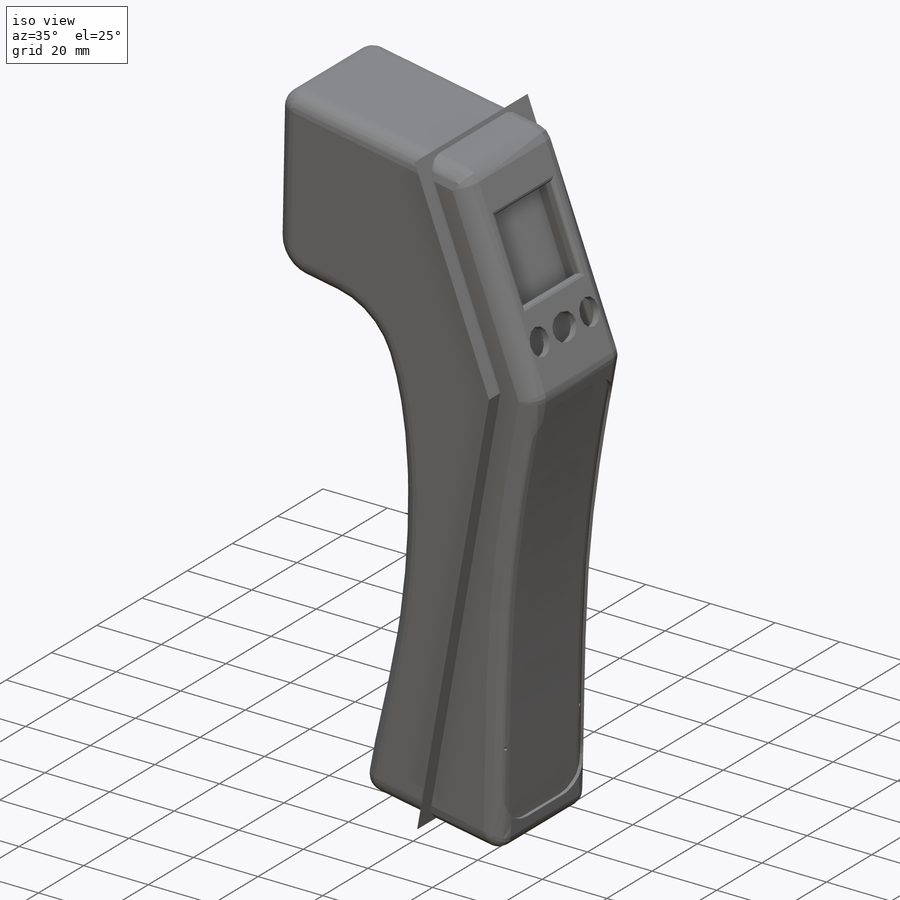
[diagram: iso view]
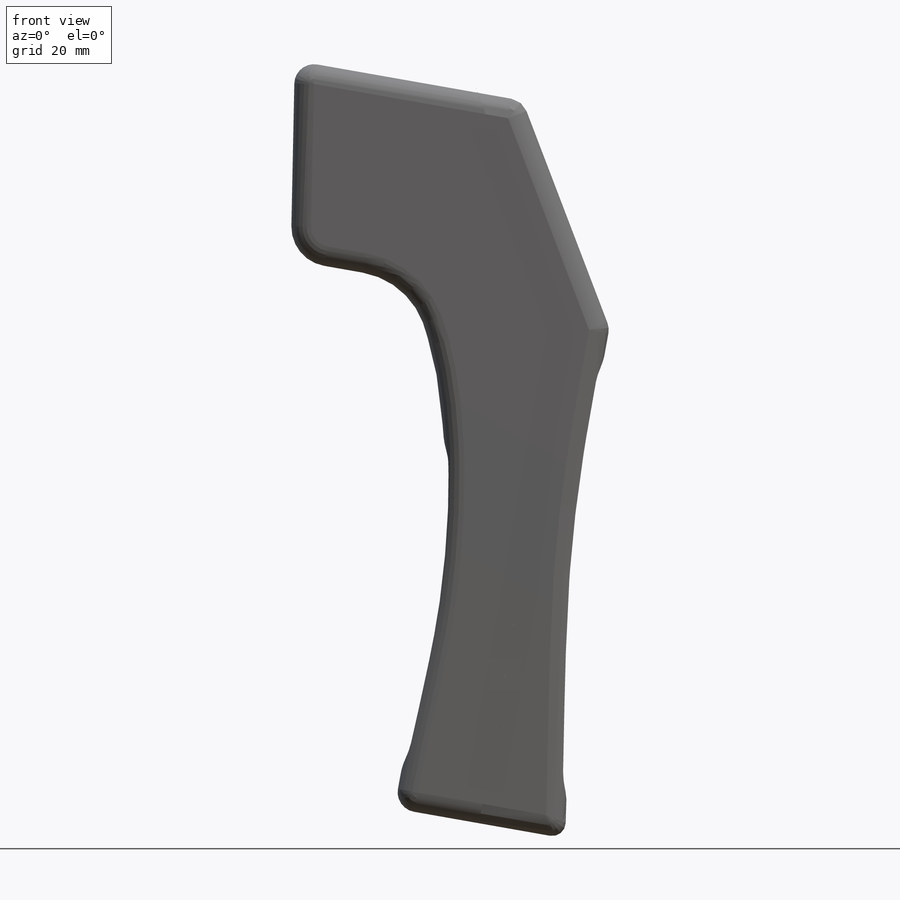
[diagram: front view]
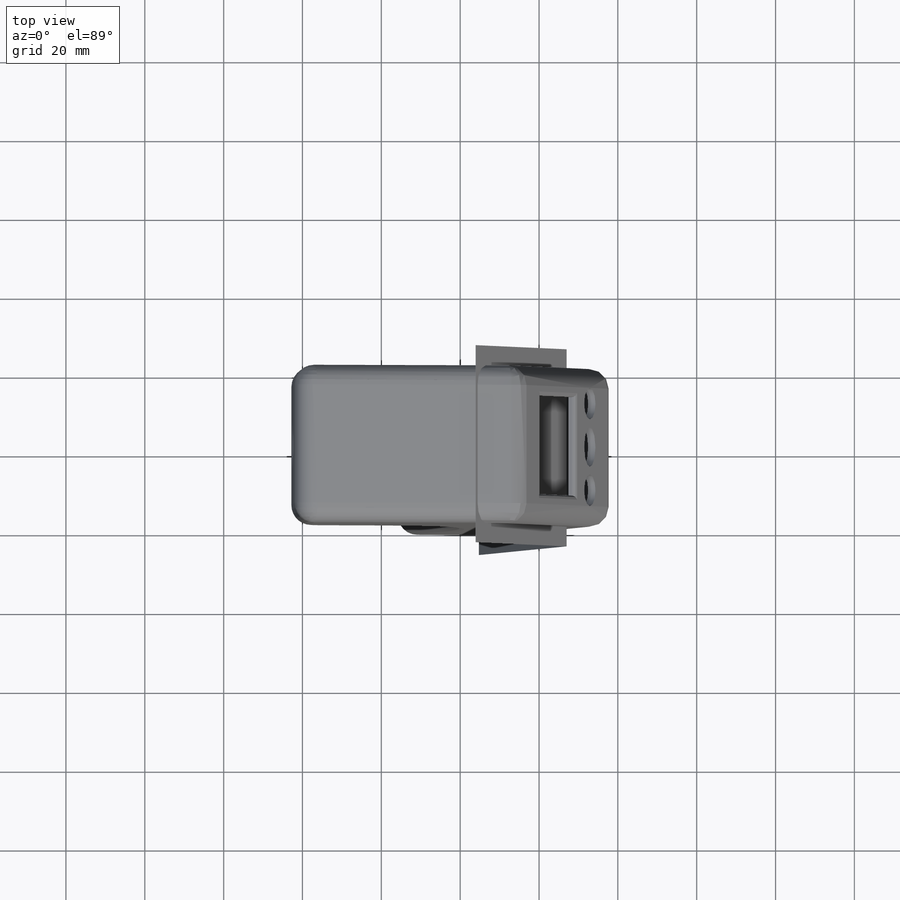
[diagram: top view]
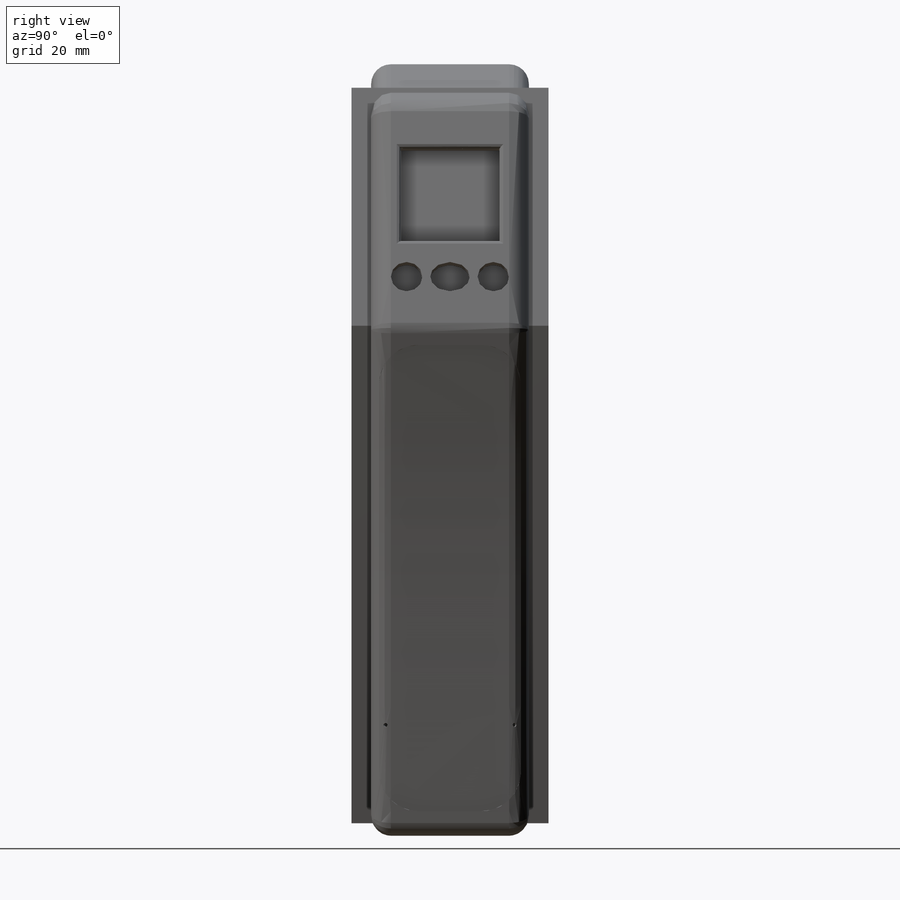
[diagram: right view]
SOLIDWORKS PART (.sldprt)
format: sldprt  version: not decoded by parser v0  size: 2,316,800 bytes
history: native  units: mm
features: sketch x36, plane x15, cut_extrude x13, shell x11, extrude x9, hole x4, mirror x3, thread x3, sweep x2, material x1, fillet x1, chamfer x1, boolean_combine x1 (+21 scaffold rows collapsed; 12 parser-record rows omitted)
feature tree (133):
  scaffold x21  (default folders/planes/origin — collapsed)
  material  "PUR"
  plane  "Vorne"
  plane  "Oben"
  plane  "Rechts"
  parser-record x12  (decoder bookkeeping rows leaked as tree rows — omitted from the tree; the rows remain in map.json)
  sketch  "Skizze1"  dims[c1.D1=0.5mm c1.D2=0.5mm c1.D3=0.5mm c1.D4=0.5mm c1.D5=0.5mm c2.D4=10.0mm c2.D1=2.0mm c2.D7=5.0mm c2.D8=5.0mm c2.D9=5.0mm c2.D3=5.0mm c2.D11=5.0mm c2.D2=5.0mm c2.D10=5.0mm c2.D6=10.0mm c3.D8=20.0mm c3.D4=10.0mm c3.D10=5.0mm c3.D11=5.0mm c3.D1=60.0mm c3.D2=~68.171842mm c4.D2=10.0deg c4.D3=250.0mm c4.D1=60.0mm c5.D3=~199.488881mm c5.D5=100.0mm c5.D6=60.0mm c5.D7=75.0mm c5.D10=198.0mm c5.D2=65.0mm c5.D11=50.0mm c5.D12=45.0mm c6.D6=50.0mm c6.D10=45.0mm c6.D11=~250.293789mm c6.D2=180.0mm c6.D5=~35.023773mm c7.D11=10.0mm c7.D12=50.0mm]
  extrude  "Korpus"  Depth=40mm
  fillet  "Verrundung Korpus"  Radius=5mm
  shell  "Hohlkörper - Wandstärke 3mm"  Thickness=2mm
  sketch  "Skizze2"  dims[c1.D6=8.0mm c1.D7=10.0mm c1.D4=8.0mm c1.D1=25.0mm c1.D2=25.0mm c1.D3=0.0mm c2.D4=0.0mm c2.D5=20.0mm c2.D8=5.0mm c2.D9=0.0mm c2.D10=12.5mm c2.D11=11.0mm c2.D12=10.0mm c2.D13=10.0mm c2.D14=~10.133951mm c2.D15=10.0mm c2.D16=8.0mm c2.D17=13.0mm c2.D18=12.5mm c2.D3=0.0mm c2.D7=0.0mm c3.D9=30.0mm c3.D13=10.0mm c3.D7=11.0mm c3.D3=7.5mm c3.D8=7.5mm c4.D9=1.5mm c4.D10=1.5mm]
  cut_extrude  "Display + Tasten"  [1 undecoded]
  shell  "Displayverrundung"  Thickness=1mm
  sketch  "Skizze22"  dims[c1.D1=1.0mm c1.D2=1.5mm c1.D3=~5.748336mm c2.D3=~0.385713deg c3.D3=~1.404745mm c4.D3=360.0deg c4.D4=~1.613691mm c5.D3=2.0mm c5.D4=~0.992609mm c6.D4=180.0deg]
  extrude  "Führungsleiste"  [1 undecoded]
  shell  "Verrundung Führungsleiste"  Thickness=0.1mm
  plane  "Hilfsebene Abzug"
  sketch  "Skizze13"  dims[c1.D1=25.0mm c1.D2=20.0mm c1.D3=15.0mm c1.D4=7.5mm c1.D5=52.5mm c1.D6=5.0mm c2.D1=15.0mm c2.D2=20.0mm c2.D3=7.5mm c2.D4=7.5mm c2.D5=2.5mm]
  cut_extrude  "Abzug"  Depth=30mm
  plane  "Ebene Schraubdome für Schalter"
  plane  "Hilfsebene Griff vorne"  Offset=70mm
  sketch  "Skizze102"  dims[c1.D1=3.5mm c1.D2=3.5mm c1.D3=3.5mm c1.D4=10.0mm c1.D5=2.5mm c1.D6=2.5mm c2.D4=4.2mm c2.D7=3.5mm c2.D8=7.5mm c2.D9=7.5mm]
  extrude  "Schraubdome Schalter"  Depth=20mm
  sketch  "Skizze105"
  cut_extrude  "Kürzen oberer Schraumdom"  Depth=7.5mm
  hole  "Ø2.1 Bohrung oberer Schraumdom"  Diameter=2mm Depth=5mm
  sketch  "Skizze107"
  sketch  "Skizze106"  dims[hole-wizard template sketch: 49 standard entries collapsed; hole parameters kept: c15.Spitzenwinkel=180.0deg]
  hole  "Ø2.1 Bohrung unterer Schraumdom"  Diameter=2.1mm Depth=3mm
  sketch  "Skizze109"
  sketch  "Skizze108"  dims[hole-wizard template sketch: 46 standard entries collapsed; hole parameters kept: c15.Bohrerdurchmesser=2.1mm c15.Bohrungstiefe=3.0mm c15.D3=~14.816244mm c15.Spitzenwinkel=180.0deg]
  sketch  "Skizze14"  dims[c1.D5=10.0mm c1.D1=90.0mm c1.D2=1.0mm c1.D3=3.0mm c1.D4=3.0mm c1.D6=100.0mm c2.D2=2.0mm]
  cut_extrude  "Aussparung Weichkompo Griff vorne"  Depth=1mm
  plane  "Hilfsebene hinten"  Offset=100mm
  sketch  "Skizze16"  dims[c1.D5=10.0mm c1.D1=3.0mm c1.D2=3.0mm c1.D3=2.0mm c1.D4=2.0mm c2.D1=3.0mm c2.D4=2.0mm]
  cut_extrude  "Aussparung Weichkompo Griff hinten"  Depth=1mm
  plane  "Hilfsebene vorne gesamt"  Offset=85mm
  sketch  "Skizze31"  dims[c1.D1=12.0mm c1.D2=13.0mm c1.D3=~10.050895mm c2.D1=20.0mm c2.D3=10.0mm c3.D1=100.0mm c3.D3=10.5mm c3.D4=8.5mm c4.D1=100.0mm c4.D2=100.0mm c5.D2=~0.732921deg c6.D2=8.5mm c6.D4=11.5mm c6.D1=11.0mm c7.D2=~8.351647mm c7.D1=8.5mm c8.D2=~10.535654mm c8.D1=10.54mm c8.D3=1.5mm]
  extrude  "Führung Stativaufnahme Messingbuchse"  Depth=7.45mm
  sketch  "Skizze35"  dims[D1=11.5mm]
  extrude  "Stativaufnahme"  Depth=0.5mm
  sketch  "Skizze85"  dims[D1=12.1mm]
  cut_extrude  "Bohrung Messingbuchse"  Depth=10mm
  chamfer  "Fase Messingbuchse"  Distance=0.2mm Angle=45deg
  mirror  "Spiegeln"
  shell  "Verrundung "  Thickness=0.3mm
  sketch  "Skizze101"  dims[c1.D1=25.0mm c1.D2=16.8mm c1.D3=1.1mm c1.D4=~1.239613mm c1.D5=13.0mm c2.D2=1.1mm]
  cut_extrude  "Material sparen"  [1 undecoded]
  plane  "Hilfsebene "
  plane  "Hilfsebene Innenleben"
  sketch  "Skizze88"  dims[c1.D1=~3.76546mm c2.D1=120.0deg c2.D2=~6.75415mm c3.D2=120.0deg c3.D3=~7.693549mm c4.D3=120.0deg c4.D4=~4.181296mm c5.D4=120.0deg c5.D5=~8.289358mm c6.D5=120.0deg c6.D1=120.0deg c6.D2=120.0deg c7.D5=20.0mm c7.D6=120.0deg c7.D7=120.0deg c7.D8=120.0deg c7.D9=120.0deg c7.D10=20.0mm c7.D1=8.0mm c7.D2=8.0mm c7.D3=8.0mm c7.D4=18.0mm c8.D1=35.0mm c8.D4=8.0mm c8.D6=8.0mm c8.D7=52.48mm c8.D11=0.5mm c8.D5=0.5mm c8.D2=0.5mm]
  sketch  "Skizze36"  dims[c1.D1=25.0mm c1.D2=10.0mm c2.D1=20.0mm c2.D2=10.0mm c2.D3=5.0mm c2.D4=15.0mm c2.D5=2.5mm c2.D6=2.5mm c3.D1=7.5mm c3.D3=~24.685882mm c3.D5=20.0mm c4.D1=22.0mm c4.D2=10.0mm c4.D3=6.0mm]
  extrude  "Verschluss Pyrometer"  Depth=30mm
  plane  "Hilfsebene Pyrometer Bohrung"  Offset=30mm
  hole  "M10x1.25 Gewindebohrung für Pyrometer"  Diameter=8.8mm Depth=20mm
  sketch  "Skizze54"
  sketch  "Skizze53"  dims[hole-wizard template sketch: 39 standard entries collapsed; hole parameters kept: c13.Bohrerdurchmesser=8.8mm c13.Bohrungstiefe=20.0mm c13.Senkdurchmesser (Oben)=10.05mm c13.D4=~33.297463mm c13.Senkwinkel (Oben)=90.0deg c14.D5=~14.816244mm c14.Spitzenwinkel=118.0deg]
  thread  "Bohrungsgewinde3"  Diameter=8.5mm  [1 undecoded]
  shell  "Verrundung Außen"  Thickness=2mm
  sketch  "Skizze84"  dims[c1.D1=3.0mm c1.D5=3.0mm c1.D2=10.0mm c1.D3=7.0mm c1.D4=~7.512465mm c2.D5=~12.764038mm]
  cut_extrude  "Schnitt-Linear austragen2"  [1 undecoded]
  thread  "Spiegeln1"  [2 undecoded]
  shell  "Verrundung4"  Thickness=3mm
  shell  "Verrundung5"  Thickness=0.3mm
  sketch  "Skizze83"  dims[D1=5.1mm D2=5.0mm]
  cut_extrude  "Bohrung Laser"  [1 undecoded]
  mirror  "Einführhilfe"
  shell  "Verrundung Außen Laser"  Thickness=1mm
  shell  "Verrundung Pyrometer innen oben"  Thickness=0.3mm
  sketch  "Skizze89"  dims[D1=10.0mm D2=6.25mm D3=10.0mm]
  cut_extrude  "Tiefenanpassung Laser"  Depth=7.5mm
  sketch  "Skizze68"  dims[c1.D1=3.0mm c1.D2=3.0mm c2.D1=4.5mm c2.D2=~0.634072mm c3.D2=0.0deg c4.D2=3.0mm c4.D3=8.0mm c4.D4=12.0mm c4.D5=8.0mm c4.D6=4.5mm]
  extrude  "Displayhalterung 1"  Depth=40mm
  shell  "Verrundung Displayhalterung"  Thickness=0.3mm
  sketch  "Skizze87"
  cut_extrude  "Stutzen Displayhalterung"  Depth=20mm
  shell  "Verrundung6"  Thickness=0.3mm
  hole  "Ø2.0 Bohrung für Kanal"  Diameter=1mm Depth=5mm
  sketch  "3D-Skizze9"
  sketch  "Skizze90"  dims[hole-wizard template sketch: 46 standard entries collapsed; hole parameters kept: c15.Bohrerdurchmesser=1.0mm c15.Bohrungstiefe=5.0mm c15.D3=~14.816244mm c15.Spitzenwinkel=118.0deg]
  thread  "Spiegeln Ø2.0 Bohrung für Kanal"  [2 undecoded]
  sketch  "3D-Skizze11"
  plane  "Ebene2"
  sketch  "Skizze94"
  plane  "Ebene3"
  sketch  "Skizze95"  dims[D1=1.0mm]
  sweep  "Kanal vorne"
  sketch  "3D-Skizze12"
  plane  "Ebene4"
  sketch  "Skizze96"
  plane  "Ebene5"
  sketch  "Skizze97"  dims[D1=1.0mm]
  sweep  "Schnitt-Austragung2"
  extrude  "9V Block Halterung"  [1 undecoded]
  sketch  "Skizze98"  dims[c1.D4=1.5mm c1.D1=12.5mm c1.D2=18.0mm c1.D3=12.0mm c2.D4=18.0mm c2.D2=12.0mm c2.D1=6.5mm c3.D2=12.0mm c3.D3=12.0mm]
  cut_extrude  "Haltenase"  Depth=1mm
  sketch  "Skizze99"  dims[D4=3.0mm D1=9.81mm D2=9.81mm D3=4.0mm]
  cut_extrude  "Aussparung 9V Block"  Depth=10mm
  mirror  "Fase Haltenase 9V Block"
  sketch  "Skizze110"  dims[D1=0.01mm]
  extrude  "Trennebene"  Depth=50mm
  boolean_combine  "Kombinieren"
decode coverage: 60 of 84 modeling features carry decoded parameters
note: ~ marks probable driven/reference dimensions
note: 11 parameter values undecoded
summary: no parameter record found for 8 features; Diameter pulled from absorbed wizard sketch
note: suppression state not decoded; provenance and decode notes live in map.json
